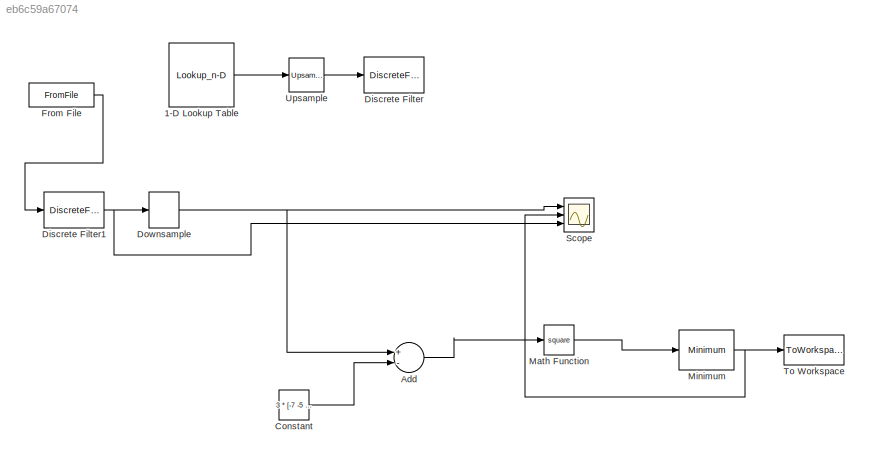
MODEL slx_eb6c59a67074
KIND model
CONFIG AbsTol = auto
CONFIG FixedStep = auto
CONFIG MaxStep = auto
CONFIG MinStep = auto
CONFIG RelTol = 1e-3
CONFIG SampleTimeConstraint = Unconstrained
CONFIG Solver = FixedStepDiscrete
CONFIG SolverMode = SingleTasking
CONFIG SolverName = FixedStepDiscrete
CONFIG StartTime = 0.0
CONFIG StopTime = 63*16
BLOCK [Lookup_n-D] 1-D Lookup Table
  BreakpointsForDimension1 = [0:7]
  InternalRulePriority = Speed
  NumberOfTableDimensions = 1
  Ports = [1, 1]
  RndMeth = Simplest
  Table = 3 * [-7 -5 -1 -3 7 5 1 3]
BLOCK [Sum] Add
  InputSameDT = off
  Inputs = +-
  OutDataTypeStr = Inherit: Inherit via internal rule
  Ports = [2, 1]
  SaturateOnIntegerOverflow = off
BLOCK [Constant] Constant
  Value = 3 * [-7 -5 -1 -3 7 5 1 3]
BLOCK [DiscreteFilter] Discrete Filter
  Denominator = [1]
  InputPortMap = u0
  Numerator = sqrt(2/16)*sin(pi*(1:16)/16)
  Ports = [1, 1]
BLOCK [DiscreteFilter] Discrete Filter1
  Denominator = [1]
  InputPortMap = u0
  Numerator = sqrt(2/16)*sin(pi*(1:16)/16)
  Ports = [1, 1]
BLOCK [DownSample] Downsample
  InputProcessing = Inherited (this choice will be removed - see release notes)
  N = 16
  RateOptions = Allow multirate processing
BLOCK [FromFile] From File
  FileName = bb8data.mat
  SampleTime = 1
BLOCK [Math] Math Function
  Operator = square
  Ports = [1, 1]
BLOCK [Reference] Minimum  REF=dspstat3/Minimum
  Ports = [1, 1]
  SourceBlock = dspstat3/Minimum
  SourceType = Minimum
  UserDataPersistent = on
BLOCK [Scope] Scope
  NumInputPorts = 3
  Ports = [3]
  ScopeSpecificationString = Simulink.scopes.TimeScopeBlockCfg('CurrentConfiguration', extmgr.ConfigurationSet(extmgr.Configuration('Core','General UI',true),extmgr.Configuration('Core','Source UI',true),extmgr.Configuration('Sources','WiredSimulink',true),extmgr.Configuration('Visuals','Time Domain',true,'SerializedDisplays',{struct('MinYLimReal','-26.25','MaxYLimReal','26.25','YLabelReal','','MinYLimMag','0.00000','MaxYLimM...<+1376ch>
BLOCK [ToWorkspace] To Workspace
  FixptAsFi = on
  MaxDataPoints = inf
  Ports = [1]
  SampleTime = -1
  Save2DSignal = 2-D array (concatenate along first dimension)
  VariableName = simout
BLOCK [Reference] Upsample  REF=dspsigops/Upsample
  Ports = [1, 1]
  SourceBlock = dspsigops/Upsample
  SourceType = Upsample
  UserDataPersistent = on
LINE 1-D Lookup Table:1 -> Upsample:1
LINE Add:1 -> Math Function:1
LINE Constant:1 -> Add:2
NET Discrete Filter1:1 -> Downsample:1, Scope:3
NET Downsample:1 -> Add:1, Scope:1
LINE From File:1 -> Discrete Filter1:1
LINE Math Function:1 -> Minimum:1
NET Minimum:1 -> Scope:2, To Workspace:1
LINE Upsample:1 -> Discrete Filter:1
note: NET lines group one-source signal fan-out (src -> all destinations, sorted); 1:1 wires keep LINE
